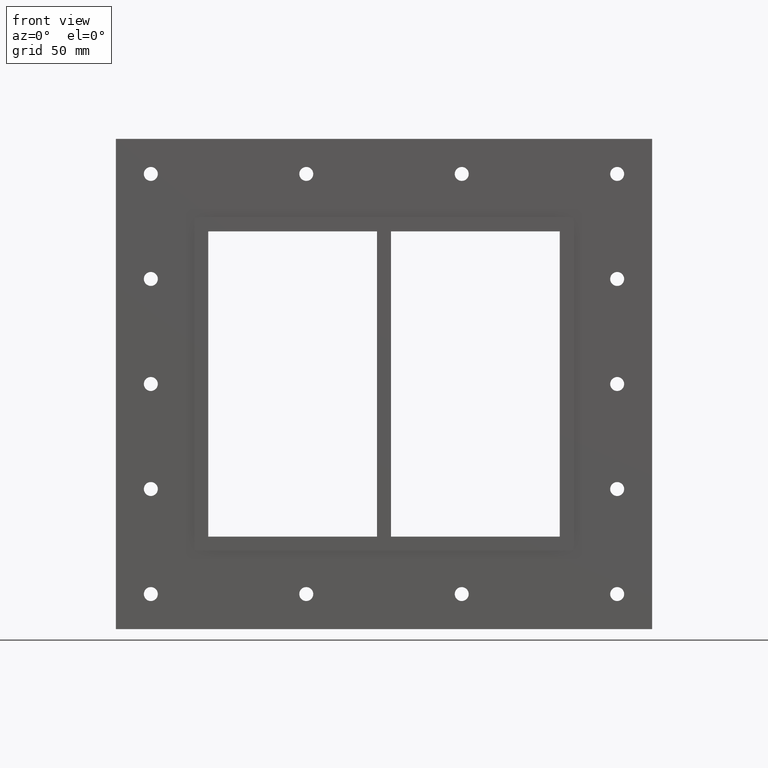
[diagram: clean part render]
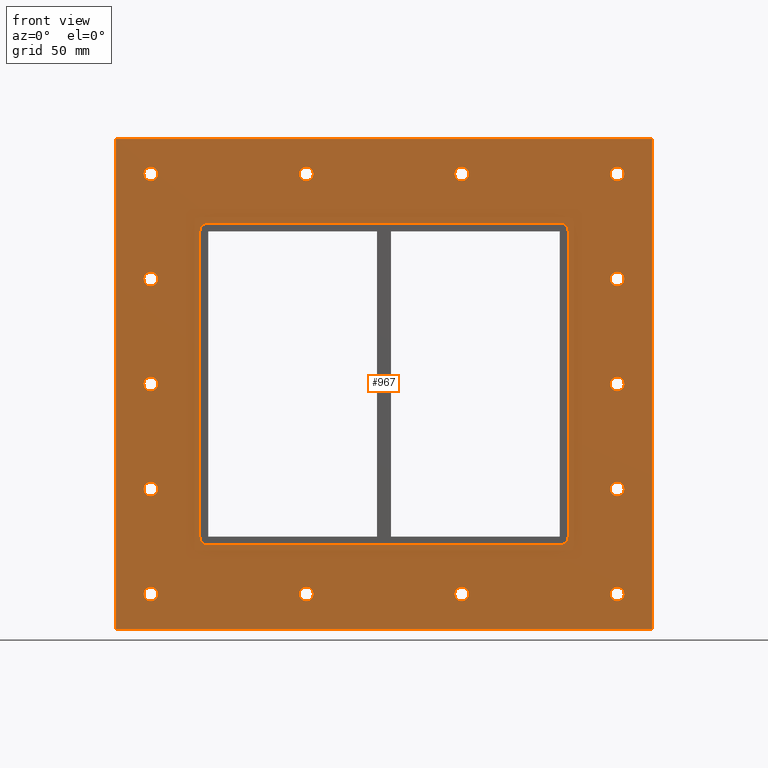
[diagram: same view with one face highlighted and labeled with its STEP entity id]
A machine part, front view. The second image highlights one B-rep face of the part: STEP entity #967.
In plain terms, the highlighted planar face has unit normal (0, 1, 0).
Its self-contained STEP definition (entity closure, byte-faithful):
#84=CARTESIAN_POINT('',(-161.50000000000011,0.0,-150.0));
#85=VERTEX_POINT('',#84);
#86=CARTESIAN_POINT('',(-166.50000000000011,0.0,-150.0));
#87=DIRECTION('',(0.0,1.0,0.0));
#88=DIRECTION('',(1.0,0.0,0.0));
#89=AXIS2_PLACEMENT_3D('',#86,#87,#88);
#90=CIRCLE('',#89,5.0);
#91=EDGE_CURVE('',#85,#85,#90,.T.);
#112=CARTESIAN_POINT('',(171.49999999999991,0.0,-75.0));
#113=VERTEX_POINT('',#112);
#114=CARTESIAN_POINT('',(166.49999999999991,0.0,-75.0));
#115=DIRECTION('',(0.0,1.0,0.0));
#116=DIRECTION('',(1.0,0.0,0.0));
#117=AXIS2_PLACEMENT_3D('',#114,#115,#116);
#118=CIRCLE('',#117,5.0);
#119=EDGE_CURVE('',#113,#113,#118,.T.);
#140=CARTESIAN_POINT('',(-161.50000000000011,0.0,-75.0));
#141=VERTEX_POINT('',#140);
#142=CARTESIAN_POINT('',(-166.50000000000011,0.0,-75.0));
#143=DIRECTION('',(0.0,1.0,0.0));
#144=DIRECTION('',(1.0,0.0,0.0));
#145=AXIS2_PLACEMENT_3D('',#142,#143,#144);
#146=CIRCLE('',#145,5.0);
#147=EDGE_CURVE('',#141,#141,#146,.T.);
#168=CARTESIAN_POINT('',(171.49999999999991,0.0,0.0));
#169=VERTEX_POINT('',#168);
#170=CARTESIAN_POINT('',(166.49999999999991,0.0,0.0));
#171=DIRECTION('',(0.0,1.0,0.0));
#172=DIRECTION('',(1.0,0.0,0.0));
#173=AXIS2_PLACEMENT_3D('',#170,#171,#172);
#174=CIRCLE('',#173,5.0);
#175=EDGE_CURVE('',#169,#169,#174,.T.);
#196=CARTESIAN_POINT('',(-161.50000000000011,0.0,0.0));
#197=VERTEX_POINT('',#196);
#198=CARTESIAN_POINT('',(-166.50000000000011,0.0,0.0));
#199=DIRECTION('',(0.0,1.0,0.0));
#200=DIRECTION('',(1.0,0.0,0.0));
#201=AXIS2_PLACEMENT_3D('',#198,#199,#200);
#202=CIRCLE('',#201,5.0);
#203=EDGE_CURVE('',#197,#197,#202,.T.);
#224=CARTESIAN_POINT('',(171.49999999999991,0.0,75.0));
#225=VERTEX_POINT('',#224);
#226=CARTESIAN_POINT('',(166.49999999999991,0.0,75.0));
#227=DIRECTION('',(0.0,1.0,0.0));
#228=DIRECTION('',(1.0,0.0,0.0));
#229=AXIS2_PLACEMENT_3D('',#226,#227,#228);
#230=CIRCLE('',#229,5.0);
#231=EDGE_CURVE('',#225,#225,#230,.T.);
#252=CARTESIAN_POINT('',(-161.50000000000011,0.0,75.0));
#253=VERTEX_POINT('',#252);
#254=CARTESIAN_POINT('',(-166.50000000000011,0.0,75.0));
#255=DIRECTION('',(0.0,1.0,0.0));
#256=DIRECTION('',(1.0,0.0,0.0));
#257=AXIS2_PLACEMENT_3D('',#254,#255,#256);
#258=CIRCLE('',#257,5.0);
#259=EDGE_CURVE('',#253,#253,#258,.T.);
#280=CARTESIAN_POINT('',(-50.500000000000114,0.0,150.0));
#281=VERTEX_POINT('',#280);
#282=CARTESIAN_POINT('',(-55.500000000000114,0.0,150.0));
#283=DIRECTION('',(0.0,1.0,0.0));
#284=DIRECTION('',(1.0,0.0,0.0));
#285=AXIS2_PLACEMENT_3D('',#282,#283,#284);
#286=CIRCLE('',#285,5.0);
#287=EDGE_CURVE('',#281,#281,#286,.T.);
#308=CARTESIAN_POINT('',(-50.500000000000114,0.0,-150.0));
#309=VERTEX_POINT('',#308);
#310=CARTESIAN_POINT('',(-55.500000000000114,0.0,-150.0));
#311=DIRECTION('',(0.0,1.0,0.0));
#312=DIRECTION('',(1.0,0.0,0.0));
#313=AXIS2_PLACEMENT_3D('',#310,#311,#312);
#314=CIRCLE('',#313,5.0);
#315=EDGE_CURVE('',#309,#309,#314,.T.);
#336=CARTESIAN_POINT('',(60.499999999999901,0.0,150.0));
#337=VERTEX_POINT('',#336);
#338=CARTESIAN_POINT('',(55.499999999999901,0.0,150.0));
#339=DIRECTION('',(0.0,1.0,0.0));
#340=DIRECTION('',(1.0,0.0,0.0));
#341=AXIS2_PLACEMENT_3D('',#338,#339,#340);
#342=CIRCLE('',#341,5.0);
#343=EDGE_CURVE('',#337,#337,#342,.T.);
#364=CARTESIAN_POINT('',(60.499999999999901,0.0,-150.0));
#365=VERTEX_POINT('',#364);
#366=CARTESIAN_POINT('',(55.499999999999901,0.0,-150.0));
#367=DIRECTION('',(0.0,1.0,0.0));
#368=DIRECTION('',(1.0,0.0,0.0));
#369=AXIS2_PLACEMENT_3D('',#366,#367,#368);
#370=CIRCLE('',#369,5.0);
#371=EDGE_CURVE('',#365,#365,#370,.T.);
#392=CARTESIAN_POINT('',(171.49999999999991,0.0,-150.0));
#393=VERTEX_POINT('',#392);
#394=CARTESIAN_POINT('',(166.49999999999991,0.0,-150.0));
#395=DIRECTION('',(0.0,1.0,0.0));
#396=DIRECTION('',(1.0,0.0,0.0));
#397=AXIS2_PLACEMENT_3D('',#394,#395,#396);
#398=CIRCLE('',#397,5.0);
#399=EDGE_CURVE('',#393,#393,#398,.T.);
#420=CARTESIAN_POINT('',(-161.50000000000011,0.0,150.0));
#421=VERTEX_POINT('',#420);
#422=CARTESIAN_POINT('',(-166.50000000000011,0.0,150.0));
#423=DIRECTION('',(0.0,1.0,0.0));
#424=DIRECTION('',(1.0,0.0,0.0));
#425=AXIS2_PLACEMENT_3D('',#422,#423,#424);
#426=CIRCLE('',#425,5.0);
#427=EDGE_CURVE('',#421,#421,#426,.T.);
#448=CARTESIAN_POINT('',(171.49999999999991,0.0,150.0));
#449=VERTEX_POINT('',#448);
#450=CARTESIAN_POINT('',(166.49999999999991,0.0,150.0));
#451=DIRECTION('',(0.0,1.0,0.0));
#452=DIRECTION('',(1.0,0.0,0.0));
#453=AXIS2_PLACEMENT_3D('',#450,#451,#452);
#454=CIRCLE('',#453,5.0);
#455=EDGE_CURVE('',#449,#449,#454,.T.);
#816=CARTESIAN_POINT('',(0.0,0.0,0.0));
#817=DIRECTION('',(0.0,1.0,0.0));
#818=DIRECTION('',(0.0,0.0,1.0));
#819=AXIS2_PLACEMENT_3D('',#816,#817,#818);
#820=PLANE('',#819);
#821=CARTESIAN_POINT('',(-191.5,0.0,175.0));
#822=VERTEX_POINT('',#821);
#823=CARTESIAN_POINT('',(191.5,0.0,175.0));
#824=VERTEX_POINT('',#823);
#825=CARTESIAN_POINT('',(-191.5,0.0,175.0));
#826=DIRECTION('',(1.0,0.0,0.0));
#827=VECTOR('',#826,383.0);
#828=LINE('',#825,#827);
#829=EDGE_CURVE('',#822,#824,#828,.T.);
#830=ORIENTED_EDGE('',*,*,#829,.F.);
#831=CARTESIAN_POINT('',(-191.5,0.0,-175.0));
#832=VERTEX_POINT('',#831);
#833=CARTESIAN_POINT('',(-191.5,0.0,-175.0));
#834=DIRECTION('',(0.0,0.0,1.0));
#835=VECTOR('',#834,350.0);
#836=LINE('',#833,#835);
#837=EDGE_CURVE('',#832,#822,#836,.T.);
#838=ORIENTED_EDGE('',*,*,#837,.F.);
#839=CARTESIAN_POINT('',(191.5,0.0,-175.0));
#840=VERTEX_POINT('',#839);
#841=CARTESIAN_POINT('',(191.5,0.0,-175.0));
#842=DIRECTION('',(-1.0,0.0,0.0));
#843=VECTOR('',#842,383.0);
#844=LINE('',#841,#843);
#845=EDGE_CURVE('',#840,#832,#844,.T.);
#846=ORIENTED_EDGE('',*,*,#845,.F.);
#847=CARTESIAN_POINT('',(191.5,0.0,175.0));
#848=DIRECTION('',(0.0,0.0,-1.0));
#849=VECTOR('',#848,350.0);
#850=LINE('',#847,#849);
#851=EDGE_CURVE('',#824,#840,#850,.T.);
#852=ORIENTED_EDGE('',*,*,#851,.F.);
#853=EDGE_LOOP('',(#830,#838,#846,#852));
#854=FACE_OUTER_BOUND('',#853,.T.);
#855=ORIENTED_EDGE('',*,*,#91,.T.);
#856=EDGE_LOOP('',(#855));
#857=FACE_BOUND('',#856,.T.);
#858=ORIENTED_EDGE('',*,*,#119,.T.);
#859=EDGE_LOOP('',(#858));
#860=FACE_BOUND('',#859,.T.);
#861=ORIENTED_EDGE('',*,*,#147,.T.);
#862=EDGE_LOOP('',(#861));
#863=FACE_BOUND('',#862,.T.);
#864=ORIENTED_EDGE('',*,*,#175,.T.);
#865=EDGE_LOOP('',(#864));
#866=FACE_BOUND('',#865,.T.);
#867=ORIENTED_EDGE('',*,*,#203,.T.);
#868=EDGE_LOOP('',(#867));
#869=FACE_BOUND('',#868,.T.);
#870=ORIENTED_EDGE('',*,*,#231,.T.);
#871=EDGE_LOOP('',(#870));
#872=FACE_BOUND('',#871,.T.);
#873=ORIENTED_EDGE('',*,*,#259,.T.);
#874=EDGE_LOOP('',(#873));
#875=FACE_BOUND('',#874,.T.);
#876=ORIENTED_EDGE('',*,*,#287,.T.);
#877=EDGE_LOOP('',(#876));
#878=FACE_BOUND('',#877,.T.);
#879=ORIENTED_EDGE('',*,*,#315,.T.);
#880=EDGE_LOOP('',(#879));
#881=FACE_BOUND('',#880,.T.);
#882=ORIENTED_EDGE('',*,*,#343,.T.);
#883=EDGE_LOOP('',(#882));
#884=FACE_BOUND('',#883,.T.);
#885=ORIENTED_EDGE('',*,*,#371,.T.);
#886=EDGE_LOOP('',(#885));
#887=FACE_BOUND('',#886,.T.);
#888=ORIENTED_EDGE('',*,*,#399,.T.);
#889=EDGE_LOOP('',(#888));
#890=FACE_BOUND('',#889,.T.);
#891=ORIENTED_EDGE('',*,*,#427,.T.);
#892=EDGE_LOOP('',(#891));
#893=FACE_BOUND('',#892,.T.);
#894=ORIENTED_EDGE('',*,*,#455,.T.);
#895=EDGE_LOOP('',(#894));
#896=FACE_BOUND('',#895,.T.);
#897=CARTESIAN_POINT('',(-131.5,0.0,-108.99999999999999));
#898=VERTEX_POINT('',#897);
#899=CARTESIAN_POINT('',(-125.5,0.0,-115.0));
#900=VERTEX_POINT('',#899);
#901=CARTESIAN_POINT('',(-125.5,0.0,-108.99999999999999));
#902=DIRECTION('',(0.0,-1.0,0.0));
#903=DIRECTION('',(-0.707106781186548,0.0,-0.707106781186548));
#904=AXIS2_PLACEMENT_3D('',#901,#902,#903);
#905=CIRCLE('',#904,6.000000000000002);
#906=EDGE_CURVE('',#898,#900,#905,.T.);
#907=ORIENTED_EDGE('',*,*,#906,.F.);
#908=CARTESIAN_POINT('',(-131.5,0.0,108.99999999999999));
#909=VERTEX_POINT('',#908);
#910=CARTESIAN_POINT('',(-131.5,0.0,109.0));
#911=DIRECTION('',(0.0,0.0,-1.0));
#912=VECTOR('',#911,218.0);
#913=LINE('',#910,#912);
#914=EDGE_CURVE('',#909,#898,#913,.T.);
#915=ORIENTED_EDGE('',*,*,#914,.F.);
#916=CARTESIAN_POINT('',(-125.5,0.0,115.0));
#917=VERTEX_POINT('',#916);
#918=CARTESIAN_POINT('',(-125.5,0.0,108.99999999999999));
#919=DIRECTION('',(0.0,-1.0,0.0));
#920=DIRECTION('',(-0.707106781186548,0.0,0.707106781186548));
#921=AXIS2_PLACEMENT_3D('',#918,#919,#920);
#922=CIRCLE('',#921,6.000000000000002);
#923=EDGE_CURVE('',#917,#909,#922,.T.);
#924=ORIENTED_EDGE('',*,*,#923,.F.);
#925=CARTESIAN_POINT('',(125.5,0.0,115.0));
#926=VERTEX_POINT('',#925);
#927=CARTESIAN_POINT('',(125.5,0.0,115.0));
#928=DIRECTION('',(-1.0,0.0,0.0));
#929=VECTOR('',#928,251.0);
#930=LINE('',#927,#929);
#931=EDGE_CURVE('',#926,#917,#930,.T.);
#932=ORIENTED_EDGE('',*,*,#931,.F.);
#933=CARTESIAN_POINT('',(131.5,0.0,109.0));
#934=VERTEX_POINT('',#933);
#935=CARTESIAN_POINT('',(125.5,0.0,109.0));
#936=DIRECTION('',(0.0,-1.0,0.0));
#937=DIRECTION('',(0.70710678118655,0.0,0.707106781186545));
#938=AXIS2_PLACEMENT_3D('',#935,#936,#937);
#939=CIRCLE('',#938,6.000000000000001);
#940=EDGE_CURVE('',#934,#926,#939,.T.);
#941=ORIENTED_EDGE('',*,*,#940,.F.);
#942=CARTESIAN_POINT('',(131.5,0.0,-108.99999999999999));
#943=VERTEX_POINT('',#942);
#944=CARTESIAN_POINT('',(131.5,0.0,-109.0));
#945=DIRECTION('',(0.0,0.0,1.0));
#946=VECTOR('',#945,218.0);
#947=LINE('',#944,#946);
#948=EDGE_CURVE('',#943,#934,#947,.T.);
#949=ORIENTED_EDGE('',*,*,#948,.F.);
#950=CARTESIAN_POINT('',(125.5,0.0,-115.0));
#951=VERTEX_POINT('',#950);
#952=CARTESIAN_POINT('',(125.5,0.0,-108.99999999999999));
#953=DIRECTION('',(0.0,-1.0,0.0));
#954=DIRECTION('',(0.707106781186548,0.0,-0.707106781186548));
#955=AXIS2_PLACEMENT_3D('',#952,#953,#954);
#956=CIRCLE('',#955,6.000000000000002);
#957=EDGE_CURVE('',#951,#943,#956,.T.);
#958=ORIENTED_EDGE('',*,*,#957,.F.);
#959=CARTESIAN_POINT('',(-125.5,0.0,-115.0));
#960=DIRECTION('',(1.0,0.0,0.0));
#961=VECTOR('',#960,251.0);
#962=LINE('',#959,#961);
#963=EDGE_CURVE('',#900,#951,#962,.T.);
#964=ORIENTED_EDGE('',*,*,#963,.F.);
#965=EDGE_LOOP('',(#907,#915,#924,#932,#941,#949,#958,#964));
#966=FACE_BOUND('',#965,.T.);
#967=ADVANCED_FACE('',(#854,#857,#860,#863,#866,#869,#872,#875,#878,#881,#884,#887,#890,#893,#896,#966),#820,.F.);